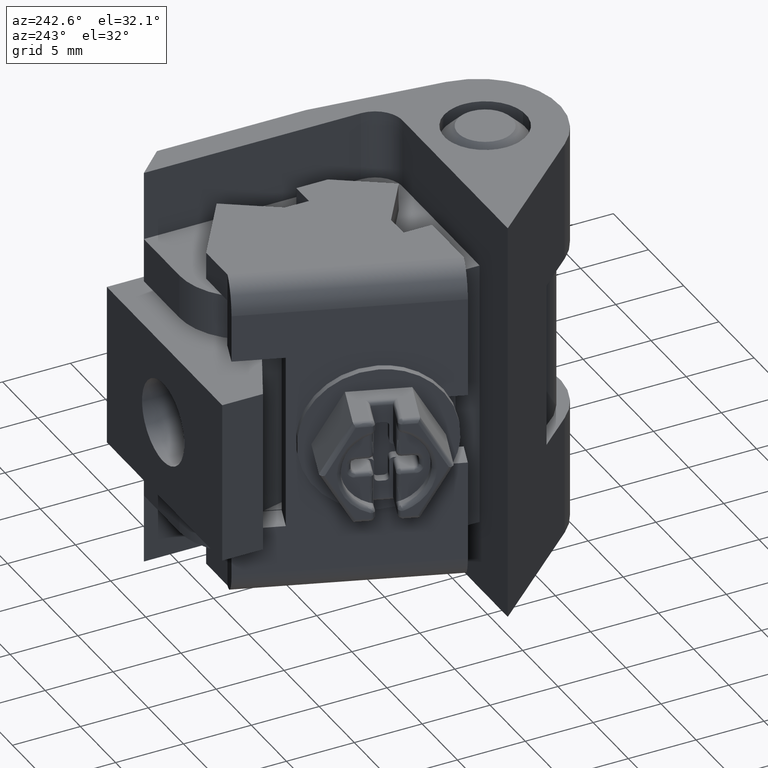
[diagram: clean part render]
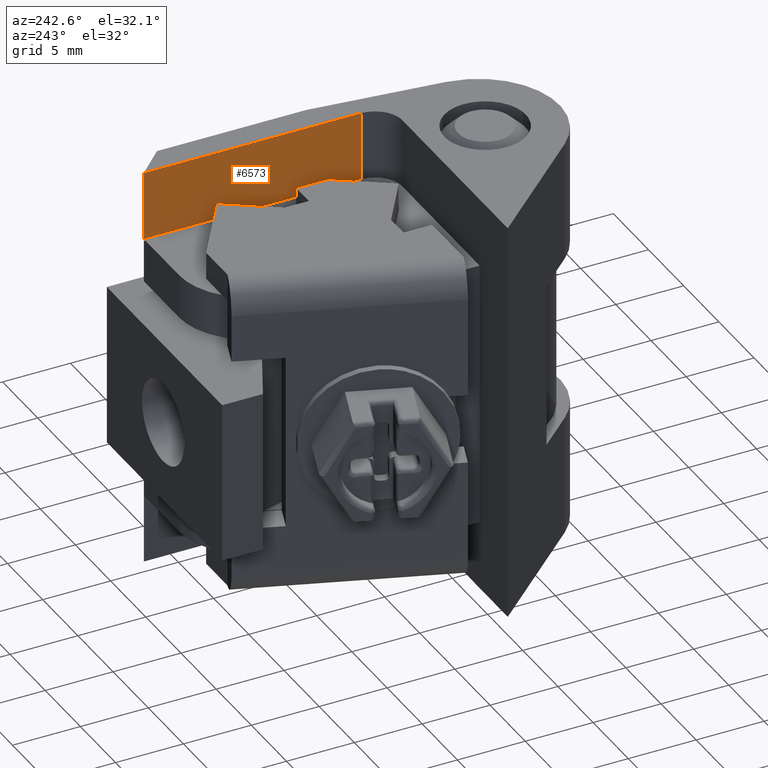
[diagram: same view with one face highlighted and labeled with its STEP entity id]
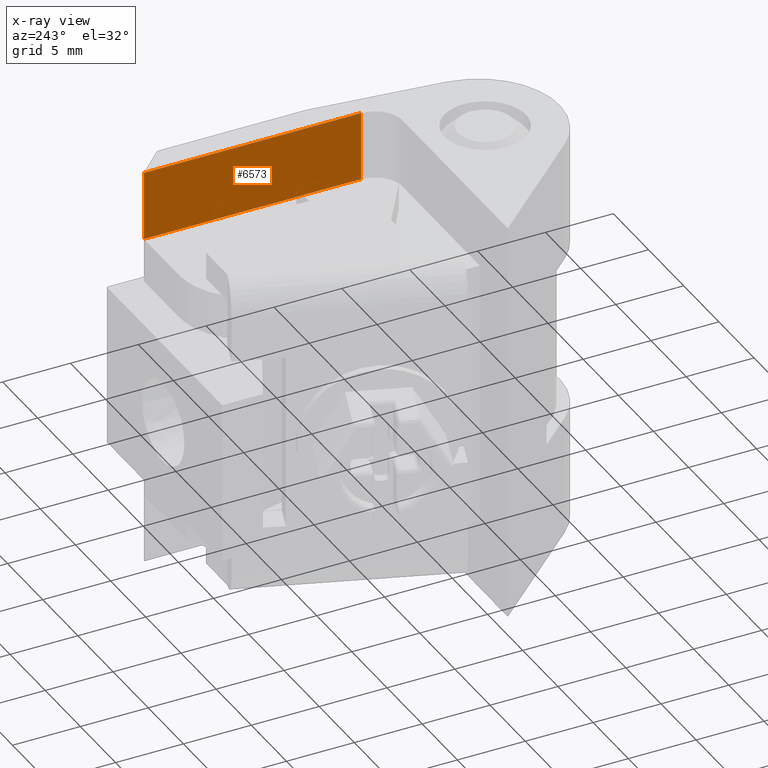
[diagram: x-ray of the same camera — body ghosted, the highlighted face saturated]
A machine part, auxiliary view. The second image highlights one B-rep face of the part: STEP entity #6573.
The next image is the same camera in x-ray: the body ghosted, the highlighted face saturated — about 0% of this face is hidden behind the body in this view.
In plain terms, the highlighted face is a freeform B-spline surface patch.
Its self-contained STEP definition (entity closure, byte-faithful):
#6127=CARTESIAN_POINT('',(5.100000146869590,6.500000308733380,24.900000142493951));
#6128=VERTEX_POINT('',#6127);
#6142=CARTESIAN_POINT('',(5.100000146869590,22.500001068692651,24.900000142493951));
#6143=VERTEX_POINT('',#6142);
#6144=CARTESIAN_POINT('',(5.100000146869590,6.500000308733380,24.900000142493951));
#6145=CARTESIAN_POINT('',(5.100000146869590,22.500001068692651,24.900000142493951));
#6146=QUASI_UNIFORM_CURVE('',1,(#6144,#6145),.UNSPECIFIED.,.F.,.U.);
#6147=EDGE_CURVE('',#6128,#6143,#6146,.T.);
#6393=CARTESIAN_POINT('',(5.100000146869590,22.500001068692651,30.000001424925198));
#6394=VERTEX_POINT('',#6393);
#6400=CARTESIAN_POINT('',(5.100000146869590,6.500000308733380,30.000001424925198));
#6401=VERTEX_POINT('',#6400);
#6402=CARTESIAN_POINT('',(5.100000146869590,6.500000308733380,30.000001424925198));
#6403=CARTESIAN_POINT('',(5.100000146869590,22.500001068692651,30.000001424925198));
#6404=QUASI_UNIFORM_CURVE('',1,(#6402,#6403),.UNSPECIFIED.,.F.,.U.);
#6405=EDGE_CURVE('',#6401,#6394,#6404,.T.);
#6554=CARTESIAN_POINT('',(5.100000146869590,5.700800451981080,24.645254495598550));
#6555=CARTESIAN_POINT('',(5.100000146869590,5.700800451981080,30.254747026223029));
#6556=CARTESIAN_POINT('',(5.100000146869590,23.299201497649559,24.645254495598550));
#6557=CARTESIAN_POINT('',(5.100000146869590,23.299201497649559,30.254747026223029));
#6558=B_SPLINE_SURFACE_WITH_KNOTS('',1,1,((#6554,#6556),(#6555,#6557)),.UNSPECIFIED.,.F.,.F.,.U.,(2,2),(2,2),(0.0,5.609492530624479),(0.0,17.598401045668481),.UNSPECIFIED.);
#6559=CARTESIAN_POINT('',(5.100000146869590,22.500001068692651,30.000001424925198));
#6560=CARTESIAN_POINT('',(5.100000146869590,22.500001068692651,24.900000142493951));
#6561=QUASI_UNIFORM_CURVE('',1,(#6559,#6560),.UNSPECIFIED.,.F.,.U.);
#6562=EDGE_CURVE('',#6394,#6143,#6561,.T.);
#6563=ORIENTED_EDGE('',*,*,#6562,.T.);
#6564=ORIENTED_EDGE('',*,*,#6147,.F.);
#6565=CARTESIAN_POINT('',(5.100000146869590,6.500000308733380,30.000001424925198));
#6566=CARTESIAN_POINT('',(5.100000146869590,6.500000308733380,24.900000142493951));
#6567=QUASI_UNIFORM_CURVE('',1,(#6565,#6566),.UNSPECIFIED.,.F.,.U.);
#6568=EDGE_CURVE('',#6401,#6128,#6567,.T.);
#6569=ORIENTED_EDGE('',*,*,#6568,.F.);
#6570=ORIENTED_EDGE('',*,*,#6405,.T.);
#6571=EDGE_LOOP('',(#6563,#6564,#6569,#6570));
#6572=FACE_OUTER_BOUND('',#6571,.T.);
#6573=ADVANCED_FACE('',(#6572),#6558,.T.);